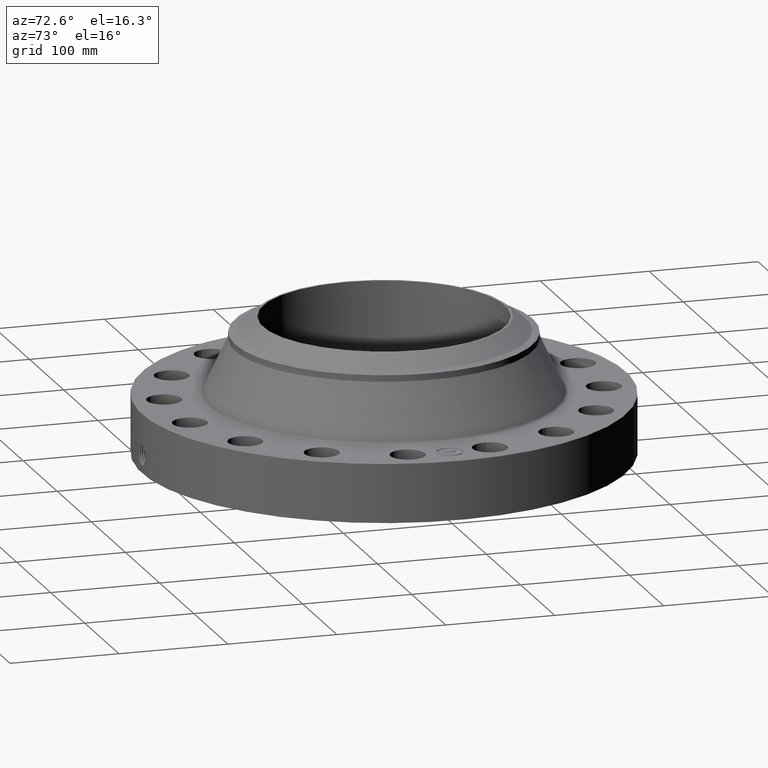
[diagram: clean part render]
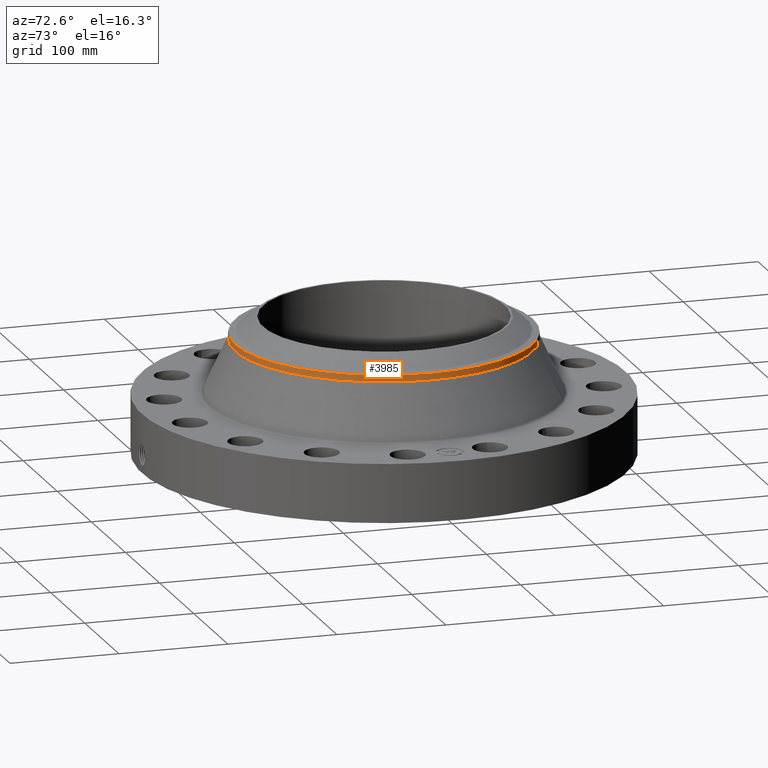
[diagram: same view with one face highlighted and labeled with its STEP entity id]
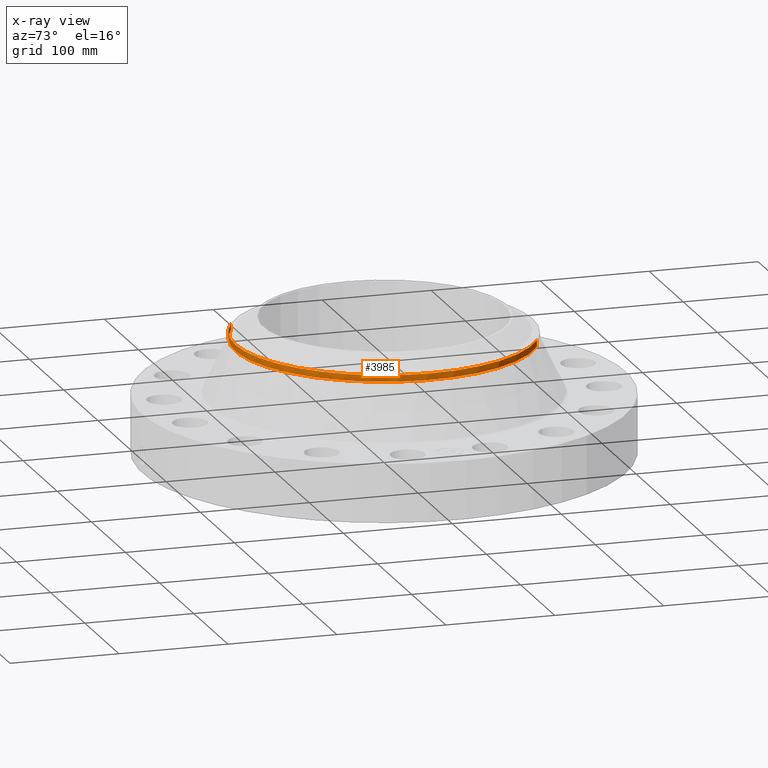
[diagram: x-ray of the same camera — body ghosted, the highlighted face saturated]
A machine part, auxiliary view. The second image highlights one B-rep face of the part: STEP entity #3985.
The next image is the same camera in x-ray: the body ghosted, the highlighted face saturated — about 0% of this face is hidden behind the body in this view.
In plain terms, the highlighted cylindrical surface (partial cylindrical patch) has radius 136.525 mm, axis along (0, 0, -1).
Its self-contained STEP definition (entity closure, byte-faithful):
#3172=AXIS2_PLACEMENT_3D('Circle Axis2P3D',#3170,#3171,$) ;
#3950=AXIS2_PLACEMENT_3D('Cylinder Axis2P3D',#3947,#3948,#3949) ;
#3968=AXIS2_PLACEMENT_3D('Circle Axis2P3D',#3966,#3967,$) ;
#3975=AXIS2_PLACEMENT_3D('Circle Axis2P3D',#3973,#3974,$) ;
#3167=CARTESIAN_POINT('Vertex',(2.57691227001,4.71700627018,4.33578537513)) ;
#3170=CARTESIAN_POINT('Axis2P3D Location',(0.,0.,4.33578537513)) ;
#3174=CARTESIAN_POINT('Vertex',(-2.57691227001,-4.71700627018,4.33578537513)) ;
#3947=CARTESIAN_POINT('Axis2P3D Location',(0.,0.,2.69000000001)) ;
#3952=CARTESIAN_POINT('Line Origine',(-2.57691227001,-4.71700627018,4.45389561135)) ;
#3956=CARTESIAN_POINT('Vertex',(-2.57691227001,-4.71700627018,4.57200584757)) ;
#3959=CARTESIAN_POINT('Line Origine',(2.57691227001,4.71700627018,4.45389561135)) ;
#3963=CARTESIAN_POINT('Vertex',(2.57691227001,4.71700627018,4.57200584757)) ;
#3966=CARTESIAN_POINT('Axis2P3D Location',(0.,0.,4.57200584757)) ;
#3970=CARTESIAN_POINT('Vertex',(2.57691227001,-4.71700627018,4.57200584757)) ;
#3973=CARTESIAN_POINT('Axis2P3D Location',(0.,0.,4.57200584757)) ;
#3171=DIRECTION('Axis2P3D Direction',(0.,0.,-0.0393700787402)) ;
#3948=DIRECTION('Axis2P3D Direction',(0.,0.,-0.0393700787402)) ;
#3949=DIRECTION('Axis2P3D XDirection',(-0.0188750212049,-0.0345504945626,0.)) ;
#3953=DIRECTION('Vector Direction',(0.,0.,-0.0393700787402)) ;
#3960=DIRECTION('Vector Direction',(0.,0.,-0.0393700787402)) ;
#3967=DIRECTION('Axis2P3D Direction',(0.,0.,-0.0393700787402)) ;
#3974=DIRECTION('Axis2P3D Direction',(0.,0.,-0.0393700787402)) ;
#3954=VECTOR('Line Direction',#3953,0.0393700787402) ;
#3961=VECTOR('Line Direction',#3960,0.0393700787402) ;
#3979=ORIENTED_EDGE('',*,*,#3958,.F.) ;
#3980=ORIENTED_EDGE('',*,*,#3176,.F.) ;
#3981=ORIENTED_EDGE('',*,*,#3965,.T.) ;
#3982=ORIENTED_EDGE('',*,*,#3972,.F.) ;
#3983=ORIENTED_EDGE('',*,*,#3977,.T.) ;
#3985=ADVANCED_FACE('PartBody',(#3984),#3951,.T.) ;
#3173=CIRCLE('generated circle',#3172,5.37500000002) ;
#3969=CIRCLE('generated circle',#3968,5.37500000002) ;
#3976=CIRCLE('generated circle',#3975,5.37500000002) ;
#3951=CYLINDRICAL_SURFACE('generated cylinder',#3950,5.37500000002) ;
#3176=EDGE_CURVE('',#3168,#3175,#3173,.T.) ;
#3958=EDGE_CURVE('',#3175,#3957,#3955,.F.) ;
#3965=EDGE_CURVE('',#3168,#3964,#3962,.F.) ;
#3972=EDGE_CURVE('',#3971,#3964,#3969,.F.) ;
#3977=EDGE_CURVE('',#3971,#3957,#3976,.T.) ;
#3978=EDGE_LOOP('',(#3979,#3980,#3981,#3982,#3983)) ;
#3984=FACE_OUTER_BOUND('',#3978,.T.) ;
#3955=LINE('Line',#3952,#3954) ;
#3962=LINE('Line',#3959,#3961) ;
#3168=VERTEX_POINT('',#3167) ;
#3175=VERTEX_POINT('',#3174) ;
#3957=VERTEX_POINT('',#3956) ;
#3964=VERTEX_POINT('',#3963) ;
#3971=VERTEX_POINT('',#3970) ;